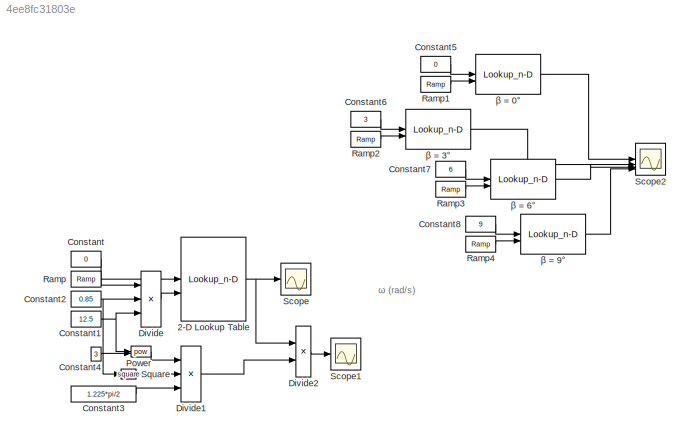
MODEL slx_4ee8fc31803e
KIND model
CONFIG AbsTol = auto
CONFIG EnableMultiTasking = off
CONFIG FixedStep = auto
CONFIG MaxStep = auto
CONFIG MinStep = auto
CONFIG RelTol = 1e-3
CONFIG SampleTimeConstraint = Unconstrained
CONFIG SolverName = VariableStepAuto
CONFIG StartTime = 0.0
CONFIG StopTime = 20
BLOCK [Lookup_n-D] 2-D Lookup Table
  BreakpointsForDimension1 = pitch
  BreakpointsForDimension2 = TSR
  InputPortMap = u0,u1
  InternalRulePriority = Speed
  InterpMethod = Cubic spline
  RndMeth = Simplest
  Table = cp
BLOCK [Constant] Constant
  Value = 0
BLOCK [Constant] Constant1
  Value = 12.5
BLOCK [Constant] Constant2
  Value = 0.85
BLOCK [Constant] Constant3
  Value = 1.225*pi/2
BLOCK [Constant] Constant4
  Value = 3
BLOCK [Constant] Constant5
  Value = 0
BLOCK [Constant] Constant6
  Value = 3
BLOCK [Constant] Constant7
  Value = 6
BLOCK [Constant] Constant8
  Value = 9
BLOCK [Product] Divide
  Inputs = **/
BLOCK [Product] Divide1
  Inputs = ***
BLOCK [Product] Divide2
BLOCK [Math] Power
  Operator = pow
BLOCK [Reference] Ramp  REF=simulink/Sources/Ramp
  SourceBlock = simulink/Sources/Ramp
  SourceType = Ramp
BLOCK [Reference] Ramp1  REF=simulink/Sources/Ramp
  SourceBlock = simulink/Sources/Ramp
  SourceType = Ramp
BLOCK [Reference] Ramp2  REF=simulink/Sources/Ramp
  SourceBlock = simulink/Sources/Ramp
  SourceType = Ramp
BLOCK [Reference] Ramp3  REF=simulink/Sources/Ramp
  SourceBlock = simulink/Sources/Ramp
  SourceType = Ramp
BLOCK [Reference] Ramp4  REF=simulink/Sources/Ramp
  SourceBlock = simulink/Sources/Ramp
  SourceType = Ramp
BLOCK [Scope] Scope
  Floating = off
  NumInputPorts = 1
  ScopeSpecificationString = Simulink.scopes.TimeScopeBlockCfg('CurrentConfiguration', extmgr.ConfigurationSet(extmgr.Configuration('Core','General UI',true,'FigureColor',[1 1 1]),extmgr.Configuration('Core','Source UI',true),extmgr.Configuration('Sources','WiredSimulink',true),extmgr.Configuration('Visuals','Time Domain',true,'SerializedDisplays',{struct('MinYLimReal','-0.05','MaxYLimReal','0.55','YLabelReal','CP(ω)','MinYLi...<+4035ch>
BLOCK [Scope] Scope1
  Floating = off
  NumInputPorts = 1
  ScopeSpecificationString = Simulink.scopes.TimeScopeBlockCfg('CurrentConfiguration', extmgr.ConfigurationSet(extmgr.Configuration('Core','General UI',true,'FigureColor',[1 1 1]),extmgr.Configuration('Core','Source UI',true),extmgr.Configuration('Sources','WiredSimulink',true,'DataLoggingVariableName','ScopeData1'),extmgr.Configuration('Visuals','Time Domain',true,'SerializedDisplays',{struct('MinYLimReal','-100','MaxYLimRea...<+4021ch>
BLOCK [Scope] Scope2
  Floating = off
  NumInputPorts = 4
  ScopeSpecificationString = Simulink.scopes.TimeScopeBlockCfg('CurrentConfiguration', extmgr.ConfigurationSet(extmgr.Configuration('Core','General UI',true,'FigureColor',[1 1 1]),extmgr.Configuration('Core','Source UI',true),extmgr.Configuration('Sources','WiredSimulink',true,'DataLoggingVariableName','ScopeData1'),extmgr.Configuration('Visuals','Time Domain',true,'SerializedDisplays',{struct('MinYLimReal','-0.05','MaxYLimRe...<+2087ch>
BLOCK [Math] Square
  Operator = square
BLOCK [Lookup_n-D] β = 0°
  BreakpointsForDimension1 = pitch
  BreakpointsForDimension2 = TSR
  InputPortMap = u0,u1
  InternalRulePriority = Speed
  InterpMethod = Cubic spline
  RndMeth = Simplest
  Table = cp
BLOCK [Lookup_n-D] β = 3°
  BreakpointsForDimension1 = pitch
  BreakpointsForDimension2 = TSR
  InputPortMap = u0,u1
  InternalRulePriority = Speed
  InterpMethod = Cubic spline
  RndMeth = Simplest
  Table = cp
BLOCK [Lookup_n-D] β = 6°
  BreakpointsForDimension1 = pitch
  BreakpointsForDimension2 = TSR
  InputPortMap = u0,u1
  InternalRulePriority = Speed
  InterpMethod = Cubic spline
  RndMeth = Simplest
  Table = cp
BLOCK [Lookup_n-D] β = 9°
  BreakpointsForDimension1 = pitch
  BreakpointsForDimension2 = TSR
  InputPortMap = u0,u1
  InternalRulePriority = Speed
  InterpMethod = Cubic spline
  RndMeth = Simplest
  Table = cp
ANNOTATION (root): ω (rad/s)
NET 2-D Lookup Table:1 -> Divide2:1, Scope:1
NET Constant1:1 -> Divide:3, Power:1
NET Constant2:1 -> Divide:2, Square:1
LINE Constant3:1 -> Divide1:3
LINE Constant4:1 -> Power:2
LINE Constant5:1 -> β = 0°:1
LINE Constant6:1 -> β = 3°:1
LINE Constant7:1 -> β = 6°:1
LINE Constant8:1 -> β = 9°:1
LINE Constant:1 -> 2-D Lookup Table:1
LINE Divide1:1 -> Divide2:2
LINE Divide2:1 -> Scope1:1
LINE Divide:1 -> 2-D Lookup Table:2
LINE Power:1 -> Divide1:1
LINE Ramp1:1 -> β = 0°:2
LINE Ramp2:1 -> β = 3°:2
LINE Ramp3:1 -> β = 6°:2
LINE Ramp4:1 -> β = 9°:2
LINE Ramp:1 -> Divide:1
LINE Square:1 -> Divide1:2
LINE β = 0°:1 -> Scope2:1
LINE β = 3°:1 -> Scope2:2
LINE β = 6°:1 -> Scope2:3
LINE β = 9°:1 -> Scope2:4
note: NET lines group one-source signal fan-out (src -> all destinations, sorted); 1:1 wires keep LINE
